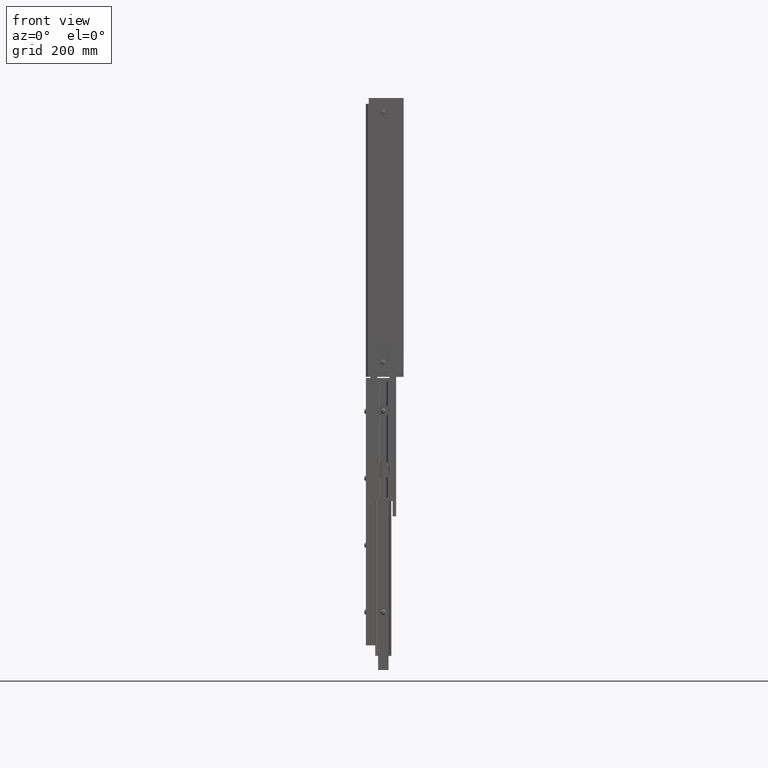
[diagram: clean part render]
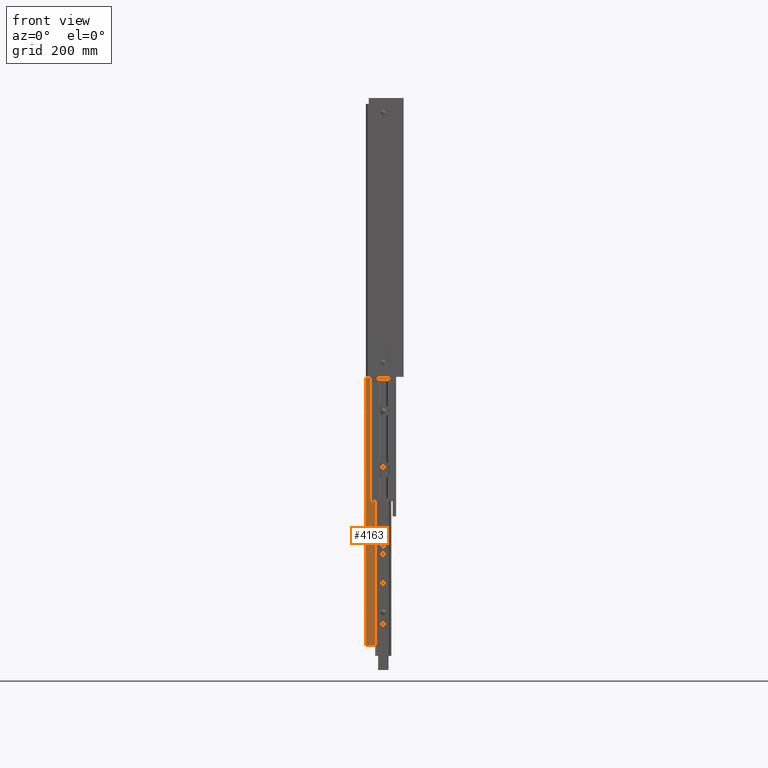
[diagram: same view with one face highlighted and labeled with its STEP entity id]
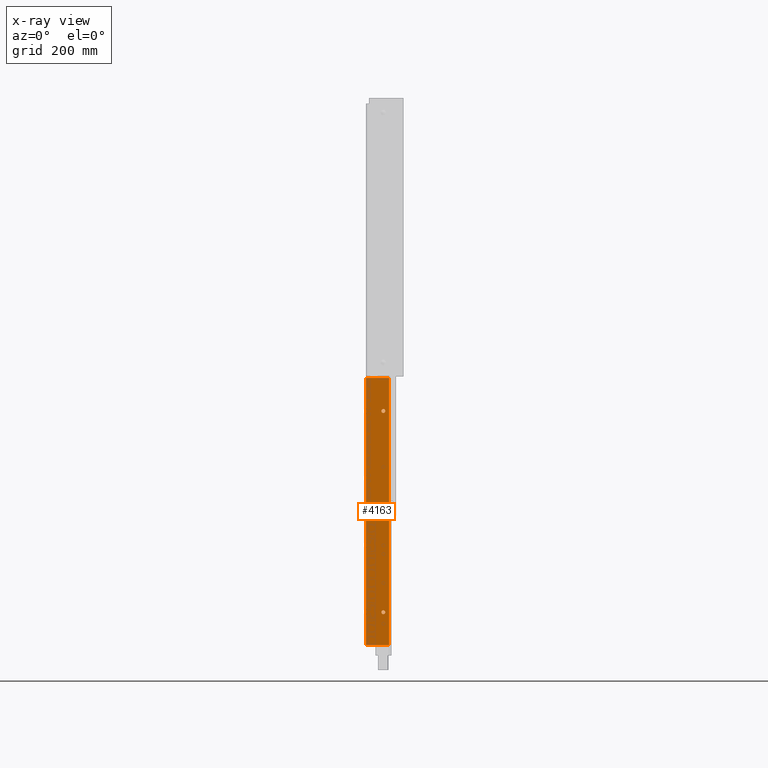
[diagram: x-ray of the same camera — body ghosted, the highlighted face saturated]
A machine part, front view. The second image highlights one B-rep face of the part: STEP entity #4163.
The next image is the same camera in x-ray: the body ghosted, the highlighted face saturated — about 0% of this face is hidden behind the body in this view.
In plain terms, the highlighted planar face has unit normal (-0, -1, 0).
Its self-contained STEP definition (entity closure, byte-faithful):
#178 = VECTOR ( 'NONE', #9940, 39.37007874015748100 ) ;
#279 = CIRCLE ( 'NONE', #10951, 0.1640649999999998800 ) ;
#769 = EDGE_CURVE ( 'NONE', #13542, #2763, #8626, .T. ) ;
#1017 = LINE ( 'NONE', #20645, #18714 ) ;
#1138 = DIRECTION ( 'NONE',  ( -1.224646799147353200E-016, 1.000000000000000000, 0.0000000000000000000 ) ) ;
#1334 = DIRECTION ( 'NONE',  ( 1.000000000000000000, -0.0000000000000000000, -0.0000000000000000000 ) ) ;
#1599 = EDGE_CURVE ( 'NONE', #1663, #12889, #279, .T. ) ;
#1663 = VERTEX_POINT ( 'NONE', #11680 ) ;
#1831 = CARTESIAN_POINT ( 'NONE',  ( 0.0000000000000000000, 0.0000000000000000000, 0.0000000000000000000 ) ) ;
#2749 = CARTESIAN_POINT ( 'NONE',  ( 1.846534690222381100E-016, -1.500000000000008200, -20.15624999999999600 ) ) ;
#2763 = VERTEX_POINT ( 'NONE', #1831 ) ;
#3567 = VERTEX_POINT ( 'NONE', #12078 ) ;
#3580 = DIRECTION ( 'NONE',  ( -1.224646799147353200E-016, 1.000000000000000000, -0.0000000000000000000 ) ) ;
#3689 = EDGE_CURVE ( 'NONE', #3567, #13753, #10715, .T. ) ;
#3698 = FACE_BOUND ( 'NONE', #8233, .T. ) ;
#4038 = VECTOR ( 'NONE', #17065, 39.37007874015748100 ) ;
#4163 = ADVANCED_FACE ( 'NONE', ( #3698, #16866, #13366 ), #19974, .T. ) ;
#4472 = DIRECTION ( 'NONE',  ( 0.0000000000000000000, 0.0000000000000000000, -1.000000000000000000 ) ) ;
#5119 = EDGE_CURVE ( 'NONE', #12889, #1663, #16005, .T. ) ;
#5579 = VERTEX_POINT ( 'NONE', #11234 ) ;
#5677 = CARTESIAN_POINT ( 'NONE',  ( 1.846534690222381100E-016, -1.500000000000008200, -20.15624999999999600 ) ) ;
#5746 = EDGE_CURVE ( 'NONE', #3567, #13542, #9299, .T. ) ;
#6157 = VECTOR ( 'NONE', #7264, 39.37007874015748100 ) ;
#6430 = CARTESIAN_POINT ( 'NONE',  ( 1.846534690222381100E-016, -1.500000000000008700, -2.843749999999998700 ) ) ;
#6797 = CARTESIAN_POINT ( 'NONE',  ( 1.846534690222381100E-016, -1.500000000000008200, -19.99218499999999200 ) ) ;
#7264 = DIRECTION ( 'NONE',  ( 0.0000000000000000000, 0.0000000000000000000, 1.000000000000000000 ) ) ;
#7427 = DIRECTION ( 'NONE',  ( 0.0000000000000000000, 0.0000000000000000000, -1.000000000000000000 ) ) ;
#7439 = CIRCLE ( 'NONE', #14231, 0.1640650000000015200 ) ;
#7521 = AXIS2_PLACEMENT_3D ( 'NONE', #9691, #11424, #1138 ) ;
#7653 = ORIENTED_EDGE ( 'NONE', *, *, #5119, .F. ) ;
#8139 = DIRECTION ( 'NONE',  ( 0.0000000000000000000, 0.0000000000000000000, -1.000000000000000000 ) ) ;
#8233 = EDGE_LOOP ( 'NONE', ( #11022, #20840 ) ) ;
#8626 = LINE ( 'NONE', #10177, #4038 ) ;
#9299 = LINE ( 'NONE', #18490, #178 ) ;
#9691 = CARTESIAN_POINT ( 'NONE',  ( 0.0000000000000000000, 0.0000000000000000000, -23.00000000000000000 ) ) ;
#9940 = DIRECTION ( 'NONE',  ( -1.224646799147353200E-016, 1.000000000000000000, -0.0000000000000000000 ) ) ;
#10177 = CARTESIAN_POINT ( 'NONE',  ( 0.0000000000000000000, 0.0000000000000000000, -23.00000000000000000 ) ) ;
#10279 = CARTESIAN_POINT ( 'NONE',  ( 0.0000000000000000000, 0.0000000000000000000, -23.00000000000000000 ) ) ;
#10715 = LINE ( 'NONE', #17517, #6157 ) ;
#10829 = ORIENTED_EDGE ( 'NONE', *, *, #20809, .F. ) ;
#10951 = AXIS2_PLACEMENT_3D ( 'NONE', #11606, #1334, #13301 ) ;
#11022 = ORIENTED_EDGE ( 'NONE', *, *, #20972, .F. ) ;
#11234 = CARTESIAN_POINT ( 'NONE',  ( 1.846534690222381100E-016, -1.500000000000008200, -20.32031499999999700 ) ) ;
#11424 = DIRECTION ( 'NONE',  ( 1.000000000000000000, 1.224646799147353200E-016, -0.0000000000000000000 ) ) ;
#11606 = CARTESIAN_POINT ( 'NONE',  ( 1.846534690222381100E-016, -1.500000000000008700, -2.843749999999998700 ) ) ;
#11626 = CARTESIAN_POINT ( 'NONE',  ( 1.846534690222381100E-016, -1.500000000000008700, -2.679684999999999200 ) ) ;
#11680 = CARTESIAN_POINT ( 'NONE',  ( 1.846534690222381100E-016, -1.500000000000008700, -3.007814999999998600 ) ) ;
#12078 = CARTESIAN_POINT ( 'NONE',  ( 2.449293598294706400E-016, -2.000000000000000000, -23.00000000000000000 ) ) ;
#12510 = CARTESIAN_POINT ( 'NONE',  ( 2.449293598294706400E-016, -2.000000000000000000, 0.0000000000000000000 ) ) ;
#12889 = VERTEX_POINT ( 'NONE', #11626 ) ;
#12934 = ORIENTED_EDGE ( 'NONE', *, *, #5746, .T. ) ;
#13050 = ORIENTED_EDGE ( 'NONE', *, *, #3689, .F. ) ;
#13127 = AXIS2_PLACEMENT_3D ( 'NONE', #6430, #18421, #8139 ) ;
#13301 = DIRECTION ( 'NONE',  ( 0.0000000000000000000, 0.0000000000000000000, -1.000000000000000000 ) ) ;
#13366 = FACE_OUTER_BOUND ( 'NONE', #13965, .T. ) ;
#13542 = VERTEX_POINT ( 'NONE', #10279 ) ;
#13753 = VERTEX_POINT ( 'NONE', #12510 ) ;
#13965 = EDGE_LOOP ( 'NONE', ( #10829, #13050, #12934, #20816 ) ) ;
#14231 = AXIS2_PLACEMENT_3D ( 'NONE', #5677, #17681, #7427 ) ;
#14728 = DIRECTION ( 'NONE',  ( 1.000000000000000000, -0.0000000000000000000, -0.0000000000000000000 ) ) ;
#14942 = EDGE_CURVE ( 'NONE', #21800, #5579, #16285, .T. ) ;
#16005 = CIRCLE ( 'NONE', #13127, 0.1640649999999998800 ) ;
#16285 = CIRCLE ( 'NONE', #16765, 0.1640650000000015200 ) ;
#16480 = ORIENTED_EDGE ( 'NONE', *, *, #1599, .F. ) ;
#16765 = AXIS2_PLACEMENT_3D ( 'NONE', #2749, #14728, #4472 ) ;
#16866 = FACE_BOUND ( 'NONE', #19230, .T. ) ;
#17065 = DIRECTION ( 'NONE',  ( 0.0000000000000000000, 0.0000000000000000000, 1.000000000000000000 ) ) ;
#17517 = CARTESIAN_POINT ( 'NONE',  ( 2.449293598294706400E-016, -2.000000000000000000, -23.00000000000000000 ) ) ;
#17681 = DIRECTION ( 'NONE',  ( 1.000000000000000000, -0.0000000000000000000, -0.0000000000000000000 ) ) ;
#18421 = DIRECTION ( 'NONE',  ( 1.000000000000000000, -0.0000000000000000000, -0.0000000000000000000 ) ) ;
#18490 = CARTESIAN_POINT ( 'NONE',  ( 0.0000000000000000000, 0.0000000000000000000, -23.00000000000000000 ) ) ;
#18714 = VECTOR ( 'NONE', #3580, 39.37007874015748100 ) ;
#19230 = EDGE_LOOP ( 'NONE', ( #16480, #7653 ) ) ;
#19974 = PLANE ( 'NONE',  #7521 ) ;
#20645 = CARTESIAN_POINT ( 'NONE',  ( 0.0000000000000000000, 0.0000000000000000000, 0.0000000000000000000 ) ) ;
#20809 = EDGE_CURVE ( 'NONE', #13753, #2763, #1017, .T. ) ;
#20816 = ORIENTED_EDGE ( 'NONE', *, *, #769, .T. ) ;
#20840 = ORIENTED_EDGE ( 'NONE', *, *, #14942, .F. ) ;
#20972 = EDGE_CURVE ( 'NONE', #5579, #21800, #7439, .T. ) ;
#21800 = VERTEX_POINT ( 'NONE', #6797 ) ;